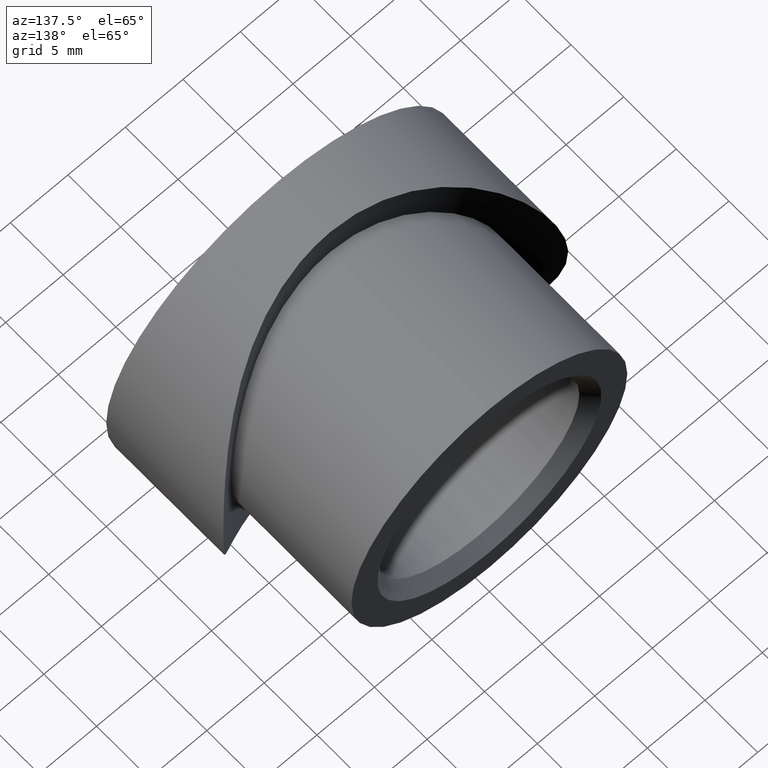
[diagram: clean part render]
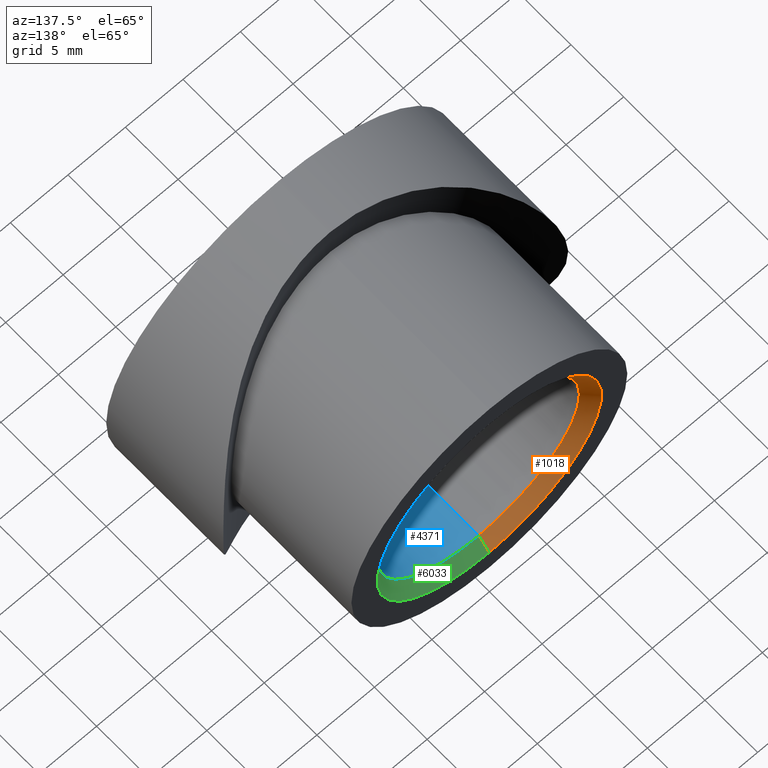
[diagram: same view with three faces highlighted in distinct colors, each labeled with its STEP entity id]
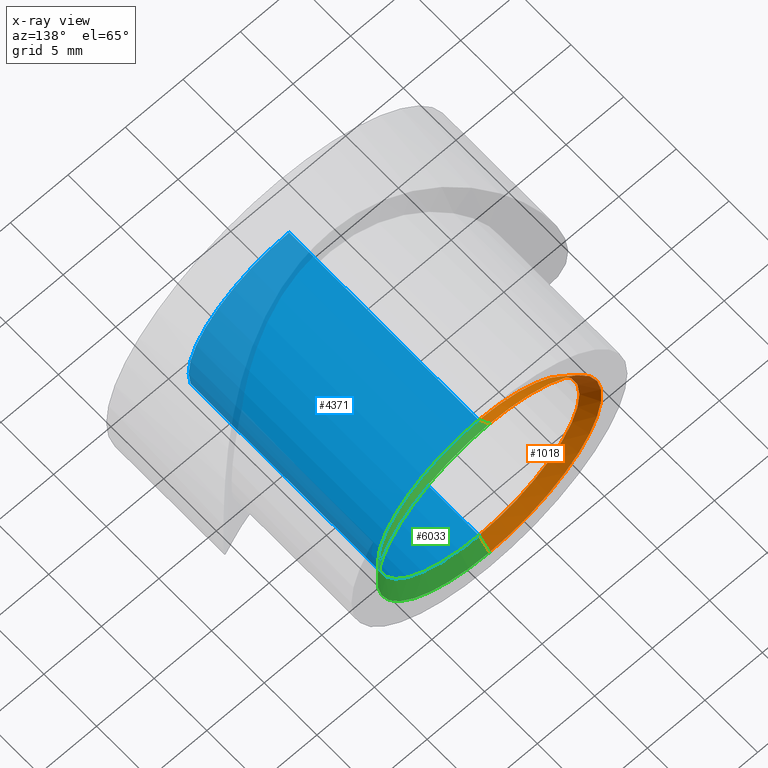
[diagram: x-ray of the same camera — body ghosted, the three highlighted faces saturated]
A machine part, auxiliary view with three faces highlighted in distinct colors.
The next image is the same camera in x-ray (body ghosted, the three faces saturated) — at least one of them is partly hidden behind the body in this view.
Their STEP definitions:

[orange] entity #1018 — the highlighted conical surface has half-angle 45 deg.
#300 = CARTESIAN_POINT ( 'NONE',  ( 1.071565949253932900E-015, 18.99999999999998900, -8.749999999999992900 ) ) ;
#406 = FACE_OUTER_BOUND ( 'NONE', #13820, .T. ) ;
#689 = VERTEX_POINT ( 'NONE', #11495 ) ;
#1018 = ADVANCED_FACE ( 'NONE', ( #406 ), #11452, .F. ) ;
#1079 = DIRECTION ( 'NONE',  ( 0.0000000000000000000, 0.0000000000000000000, -1.000000000000000000 ) ) ;
#1525 = VECTOR ( 'NONE', #3935, 1000.000000000000000 ) ;
#1558 = CIRCLE ( 'NONE', #5859, 8.749999999999992900 ) ;
#2326 = DIRECTION ( 'NONE',  ( 0.0000000000000000000, 0.0000000000000000000, -1.000000000000000000 ) ) ;
#2416 = VERTEX_POINT ( 'NONE', #4135 ) ;
#3214 = DIRECTION ( 'NONE',  ( 0.0000000000000000000, -1.000000000000000000, 0.0000000000000000000 ) ) ;
#3317 = CARTESIAN_POINT ( 'NONE',  ( 0.0000000000000000000, 18.99999999999998900, 0.0000000000000000000 ) ) ;
#3844 = CARTESIAN_POINT ( 'NONE',  ( 1.071565949253932900E-015, 18.99999999999998900, -8.749999999999992900 ) ) ;
#3935 = DIRECTION ( 'NONE',  ( 8.659560562354953800E-017, 0.7071067811865456900, -0.7071067811865493500 ) ) ;
#4023 = LINE ( 'NONE', #8176, #9871 ) ;
#4135 = CARTESIAN_POINT ( 'NONE',  ( 0.0000000000000000000, 20.00000000000000000, 9.750000000000008900 ) ) ;
#4610 = EDGE_CURVE ( 'NONE', #11842, #10373, #1558, .T. ) ;
#4632 = DIRECTION ( 'NONE',  ( 0.0000000000000000000, 0.0000000000000000000, 1.000000000000000000 ) ) ;
#4903 = DIRECTION ( 'NONE',  ( 0.0000000000000000000, 0.7071067811865456900, 0.7071067811865493500 ) ) ;
#4913 = EDGE_CURVE ( 'NONE', #10373, #2416, #4023, .T. ) ;
#5195 = LINE ( 'NONE', #3844, #1525 ) ;
#5388 = AXIS2_PLACEMENT_3D ( 'NONE', #6563, #11020, #4632 ) ;
#5497 = DIRECTION ( 'NONE',  ( 0.0000000000000000000, 1.000000000000000000, 0.0000000000000000000 ) ) ;
#5859 = AXIS2_PLACEMENT_3D ( 'NONE', #3317, #5497, #1079 ) ;
#6563 = CARTESIAN_POINT ( 'NONE',  ( 0.0000000000000000000, 18.99999999999998900, 0.0000000000000000000 ) ) ;
#7362 = ORIENTED_EDGE ( 'NONE', *, *, #4610, .F. ) ;
#7921 = EDGE_CURVE ( 'NONE', #11842, #689, #5195, .T. ) ;
#8176 = CARTESIAN_POINT ( 'NONE',  ( 0.0000000000000000000, 18.99999999999998900, 8.749999999999992900 ) ) ;
#8234 = EDGE_CURVE ( 'NONE', #2416, #689, #12955, .T. ) ;
#9746 = ORIENTED_EDGE ( 'NONE', *, *, #7921, .T. ) ;
#9871 = VECTOR ( 'NONE', #4903, 1000.000000000000000 ) ;
#10017 = CARTESIAN_POINT ( 'NONE',  ( 0.0000000000000000000, 18.99999999999998900, 8.749999999999992900 ) ) ;
#10373 = VERTEX_POINT ( 'NONE', #10017 ) ;
#10385 = AXIS2_PLACEMENT_3D ( 'NONE', #14067, #3214, #2326 ) ;
#11020 = DIRECTION ( 'NONE',  ( 0.0000000000000000000, 1.000000000000000000, 0.0000000000000000000 ) ) ;
#11350 = ORIENTED_EDGE ( 'NONE', *, *, #8234, .F. ) ;
#11392 = ORIENTED_EDGE ( 'NONE', *, *, #4913, .F. ) ;
#11452 = CONICAL_SURFACE ( 'NONE', #5388, 8.749999999999992900, 0.7853981633974509400 ) ;
#11495 = CARTESIAN_POINT ( 'NONE',  ( 1.194030629168670500E-015, 20.00000000000000000, -9.750000000000008900 ) ) ;
#11842 = VERTEX_POINT ( 'NONE', #300 ) ;
#12955 = CIRCLE ( 'NONE', #10385, 9.750000000000008900 ) ;
#13820 = EDGE_LOOP ( 'NONE', ( #7362, #9746, #11350, #11392 ) ) ;
#14067 = CARTESIAN_POINT ( 'NONE',  ( 0.0000000000000000000, 20.00000000000000000, 0.0000000000000000000 ) ) ;

[blue] entity #4371 — the highlighted cylindrical surface (partial cylindrical patch) has radius 8.75 mm, axis along (-0, 1, -0).
#300 = CARTESIAN_POINT ( 'NONE',  ( 1.071565949253932900E-015, 18.99999999999998900, -8.749999999999992900 ) ) ;
#1906 = CARTESIAN_POINT ( 'NONE',  ( 1.071565949253932900E-015, 0.9999999999999904500, -8.749999999999992900 ) ) ;
#2126 = DIRECTION ( 'NONE',  ( 0.0000000000000000000, 0.0000000000000000000, 1.000000000000000000 ) ) ;
#2289 = EDGE_CURVE ( 'NONE', #10373, #11842, #3517, .T. ) ;
#3107 = ORIENTED_EDGE ( 'NONE', *, *, #12626, .T. ) ;
#3341 = VECTOR ( 'NONE', #12604, 1000.000000000000000 ) ;
#3517 = CIRCLE ( 'NONE', #11110, 8.749999999999992900 ) ;
#3987 = FACE_OUTER_BOUND ( 'NONE', #5747, .T. ) ;
#4131 = CARTESIAN_POINT ( 'NONE',  ( 0.0000000000000000000, 0.9999999999999904500, 0.0000000000000000000 ) ) ;
#4182 = CYLINDRICAL_SURFACE ( 'NONE', #10275, 8.749999999999992900 ) ;
#4190 = DIRECTION ( 'NONE',  ( -0.0000000000000000000, 1.000000000000000000, -0.0000000000000000000 ) ) ;
#4318 = DIRECTION ( 'NONE',  ( -0.0000000000000000000, 1.000000000000000000, -0.0000000000000000000 ) ) ;
#4323 = CIRCLE ( 'NONE', #13833, 8.749999999999992900 ) ;
#4371 = ADVANCED_FACE ( 'NONE', ( #3987 ), #4182, .F. ) ;
#4755 = EDGE_CURVE ( 'NONE', #11036, #11842, #4875, .T. ) ;
#4875 = LINE ( 'NONE', #12700, #3341 ) ;
#5747 = EDGE_LOOP ( 'NONE', ( #10822, #8984, #3107, #11025 ) ) ;
#8044 = VECTOR ( 'NONE', #4190, 1000.000000000000000 ) ;
#8215 = EDGE_CURVE ( 'NONE', #11036, #10780, #4323, .T. ) ;
#8419 = DIRECTION ( 'NONE',  ( 0.0000000000000000000, 0.0000000000000000000, 1.000000000000000000 ) ) ;
#8984 = ORIENTED_EDGE ( 'NONE', *, *, #8215, .T. ) ;
#9139 = CARTESIAN_POINT ( 'NONE',  ( 0.0000000000000000000, 18.99999999999998900, 0.0000000000000000000 ) ) ;
#10017 = CARTESIAN_POINT ( 'NONE',  ( 0.0000000000000000000, 18.99999999999998900, 8.749999999999992900 ) ) ;
#10275 = AXIS2_PLACEMENT_3D ( 'NONE', #10911, #4318, #2126 ) ;
#10373 = VERTEX_POINT ( 'NONE', #10017 ) ;
#10780 = VERTEX_POINT ( 'NONE', #11106 ) ;
#10822 = ORIENTED_EDGE ( 'NONE', *, *, #4755, .F. ) ;
#10911 = CARTESIAN_POINT ( 'NONE',  ( 0.0000000000000000000, 20.00000000000000000, 0.0000000000000000000 ) ) ;
#10971 = LINE ( 'NONE', #11889, #8044 ) ;
#11025 = ORIENTED_EDGE ( 'NONE', *, *, #2289, .T. ) ;
#11036 = VERTEX_POINT ( 'NONE', #1906 ) ;
#11106 = CARTESIAN_POINT ( 'NONE',  ( 0.0000000000000000000, 0.9999999999999904500, 8.749999999999992900 ) ) ;
#11110 = AXIS2_PLACEMENT_3D ( 'NONE', #9139, #11542, #12522 ) ;
#11542 = DIRECTION ( 'NONE',  ( 0.0000000000000000000, 1.000000000000000000, 0.0000000000000000000 ) ) ;
#11830 = DIRECTION ( 'NONE',  ( -0.0000000000000000000, -1.000000000000000000, -0.0000000000000000000 ) ) ;
#11842 = VERTEX_POINT ( 'NONE', #300 ) ;
#11889 = CARTESIAN_POINT ( 'NONE',  ( 0.0000000000000000000, 20.00000000000000000, 8.749999999999992900 ) ) ;
#12522 = DIRECTION ( 'NONE',  ( 0.0000000000000000000, 0.0000000000000000000, -1.000000000000000000 ) ) ;
#12604 = DIRECTION ( 'NONE',  ( -0.0000000000000000000, 1.000000000000000000, -0.0000000000000000000 ) ) ;
#12626 = EDGE_CURVE ( 'NONE', #10780, #10373, #10971, .T. ) ;
#12700 = CARTESIAN_POINT ( 'NONE',  ( 1.071565949253932900E-015, 20.00000000000000000, -8.749999999999992900 ) ) ;
#13833 = AXIS2_PLACEMENT_3D ( 'NONE', #4131, #11830, #8419 ) ;

[green] entity #6033 — the highlighted conical surface has half-angle 45 deg.
#300 = CARTESIAN_POINT ( 'NONE',  ( 1.071565949253932900E-015, 18.99999999999998900, -8.749999999999992900 ) ) ;
#664 = DIRECTION ( 'NONE',  ( 0.0000000000000000000, 1.000000000000000000, 0.0000000000000000000 ) ) ;
#689 = VERTEX_POINT ( 'NONE', #11495 ) ;
#1525 = VECTOR ( 'NONE', #3935, 1000.000000000000000 ) ;
#1686 = ORIENTED_EDGE ( 'NONE', *, *, #4913, .T. ) ;
#2289 = EDGE_CURVE ( 'NONE', #10373, #11842, #3517, .T. ) ;
#2416 = VERTEX_POINT ( 'NONE', #4135 ) ;
#2591 = DIRECTION ( 'NONE',  ( 0.0000000000000000000, 0.0000000000000000000, -1.000000000000000000 ) ) ;
#2915 = AXIS2_PLACEMENT_3D ( 'NONE', #11417, #13850, #2591 ) ;
#3517 = CIRCLE ( 'NONE', #11110, 8.749999999999992900 ) ;
#3832 = FACE_OUTER_BOUND ( 'NONE', #10867, .T. ) ;
#3844 = CARTESIAN_POINT ( 'NONE',  ( 1.071565949253932900E-015, 18.99999999999998900, -8.749999999999992900 ) ) ;
#3935 = DIRECTION ( 'NONE',  ( 8.659560562354953800E-017, 0.7071067811865456900, -0.7071067811865493500 ) ) ;
#3950 = ORIENTED_EDGE ( 'NONE', *, *, #2289, .F. ) ;
#4023 = LINE ( 'NONE', #8176, #9871 ) ;
#4135 = CARTESIAN_POINT ( 'NONE',  ( 0.0000000000000000000, 20.00000000000000000, 9.750000000000008900 ) ) ;
#4903 = DIRECTION ( 'NONE',  ( 0.0000000000000000000, 0.7071067811865456900, 0.7071067811865493500 ) ) ;
#4913 = EDGE_CURVE ( 'NONE', #10373, #2416, #4023, .T. ) ;
#5195 = LINE ( 'NONE', #3844, #1525 ) ;
#6003 = CIRCLE ( 'NONE', #2915, 9.750000000000008900 ) ;
#6033 = ADVANCED_FACE ( 'NONE', ( #3832 ), #8499, .F. ) ;
#6169 = ORIENTED_EDGE ( 'NONE', *, *, #7921, .F. ) ;
#7921 = EDGE_CURVE ( 'NONE', #11842, #689, #5195, .T. ) ;
#8176 = CARTESIAN_POINT ( 'NONE',  ( 0.0000000000000000000, 18.99999999999998900, 8.749999999999992900 ) ) ;
#8499 = CONICAL_SURFACE ( 'NONE', #13729, 8.749999999999992900, 0.7853981633974509400 ) ;
#9015 = ORIENTED_EDGE ( 'NONE', *, *, #11323, .F. ) ;
#9139 = CARTESIAN_POINT ( 'NONE',  ( 0.0000000000000000000, 18.99999999999998900, 0.0000000000000000000 ) ) ;
#9390 = DIRECTION ( 'NONE',  ( 0.0000000000000000000, 0.0000000000000000000, 1.000000000000000000 ) ) ;
#9871 = VECTOR ( 'NONE', #4903, 1000.000000000000000 ) ;
#10017 = CARTESIAN_POINT ( 'NONE',  ( 0.0000000000000000000, 18.99999999999998900, 8.749999999999992900 ) ) ;
#10373 = VERTEX_POINT ( 'NONE', #10017 ) ;
#10867 = EDGE_LOOP ( 'NONE', ( #6169, #3950, #1686, #9015 ) ) ;
#11110 = AXIS2_PLACEMENT_3D ( 'NONE', #9139, #11542, #12522 ) ;
#11323 = EDGE_CURVE ( 'NONE', #689, #2416, #6003, .T. ) ;
#11417 = CARTESIAN_POINT ( 'NONE',  ( 0.0000000000000000000, 20.00000000000000000, 0.0000000000000000000 ) ) ;
#11495 = CARTESIAN_POINT ( 'NONE',  ( 1.194030629168670500E-015, 20.00000000000000000, -9.750000000000008900 ) ) ;
#11542 = DIRECTION ( 'NONE',  ( 0.0000000000000000000, 1.000000000000000000, 0.0000000000000000000 ) ) ;
#11842 = VERTEX_POINT ( 'NONE', #300 ) ;
#12522 = DIRECTION ( 'NONE',  ( 0.0000000000000000000, 0.0000000000000000000, -1.000000000000000000 ) ) ;
#12790 = CARTESIAN_POINT ( 'NONE',  ( 0.0000000000000000000, 18.99999999999998900, 0.0000000000000000000 ) ) ;
#13729 = AXIS2_PLACEMENT_3D ( 'NONE', #12790, #664, #9390 ) ;
#13850 = DIRECTION ( 'NONE',  ( 0.0000000000000000000, -1.000000000000000000, 0.0000000000000000000 ) ) ;